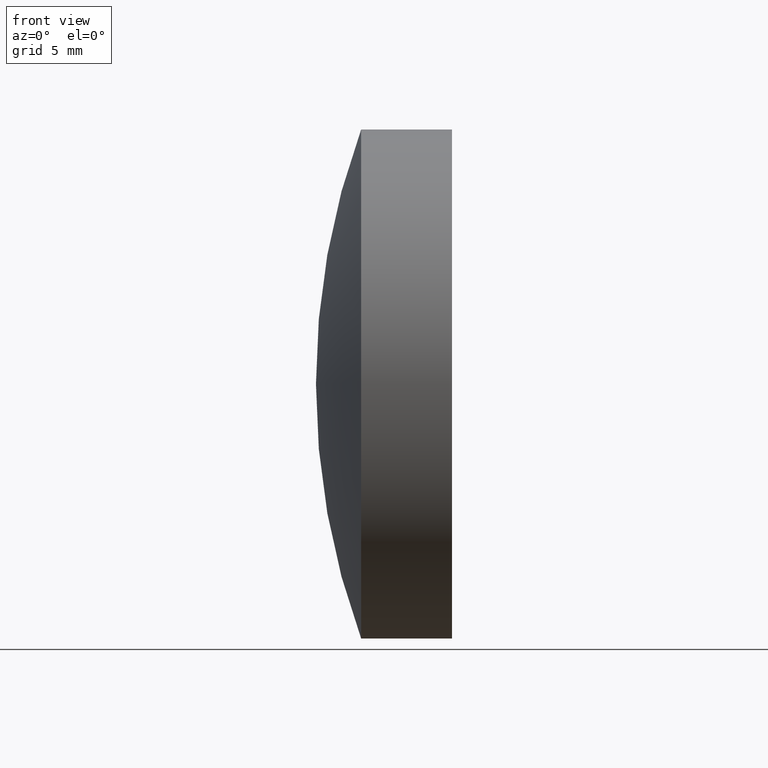
[diagram: clean part render]
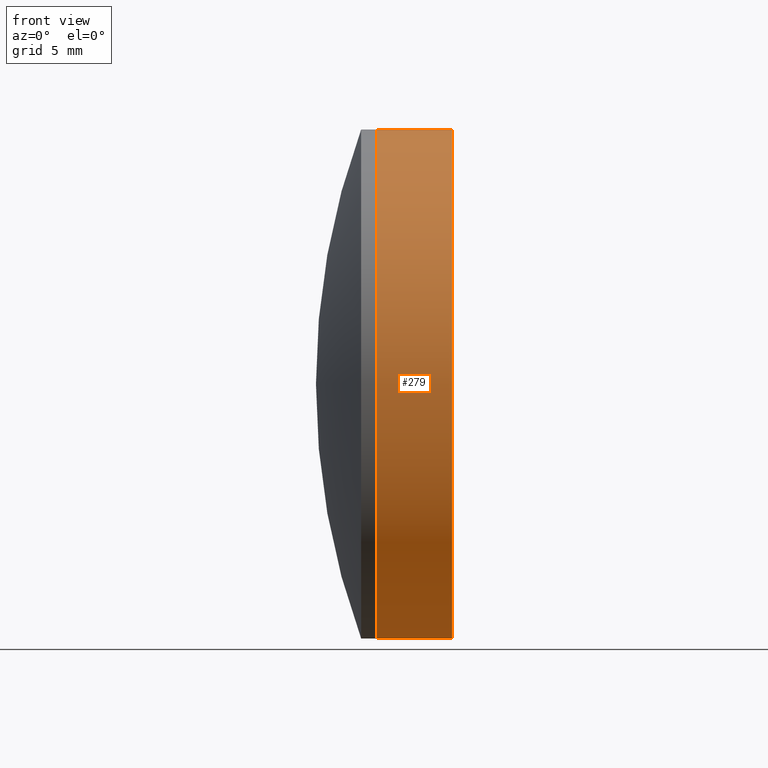
[diagram: same view with one face highlighted and labeled with its STEP entity id]
A machine part, front view. The second image highlights one B-rep face of the part: STEP entity #279.
In plain terms, the highlighted cylindrical surface (partial cylindrical patch) has radius 12.7 mm, axis along (-1, -0, -0).
Its self-contained STEP definition (entity closure, byte-faithful):
#1 = DIRECTION ( 'NONE',  ( -1.000000000000000000, -0.0000000000000000000, -0.0000000000000000000 ) ) ;
#14 = VECTOR ( 'NONE', #19, 1000.000000000000000 ) ;
#19 = DIRECTION ( 'NONE',  ( -1.000000000000000000, -0.0000000000000000000, -0.0000000000000000000 ) ) ;
#28 = CARTESIAN_POINT ( 'NONE',  ( 307.0473420726939900, 0.0000000000000000000, 12.69999999999999900 ) ) ;
#44 = CIRCLE ( 'NONE', #298, 12.70000000000001500 ) ;
#58 = FACE_OUTER_BOUND ( 'NONE', #306, .T. ) ;
#61 = AXIS2_PLACEMENT_3D ( 'NONE', #138, #133, #319 ) ;
#64 = CYLINDRICAL_SURFACE ( 'NONE', #61, 12.70000000000000600 ) ;
#65 = EDGE_CURVE ( 'NONE', #231, #297, #88, .T. ) ;
#71 = VERTEX_POINT ( 'NONE', #203 ) ;
#77 = ORIENTED_EDGE ( 'NONE', *, *, #303, .T. ) ;
#81 = VECTOR ( 'NONE', #230, 1000.000000000000000 ) ;
#82 = VERTEX_POINT ( 'NONE', #101 ) ;
#83 = CARTESIAN_POINT ( 'NONE',  ( 303.2964480163323600, 0.0000000000000000000, 0.0000000000000000000 ) ) ;
#84 = EDGE_CURVE ( 'NONE', #82, #71, #149, .T. ) ;
#88 = LINE ( 'NONE', #105, #14 ) ;
#101 = CARTESIAN_POINT ( 'NONE',  ( 307.0473420726939900, 1.555301434917138800E-015, -12.69999999999999900 ) ) ;
#104 = DIRECTION ( 'NONE',  ( 0.0000000000000000000, 0.0000000000000000000, 1.000000000000000000 ) ) ;
#105 = CARTESIAN_POINT ( 'NONE',  ( -0.5519199926577972300, 0.0000000000000000000, 12.70000000000000600 ) ) ;
#109 = CIRCLE ( 'NONE', #147, 12.69999999999999900 ) ;
#127 = CARTESIAN_POINT ( 'NONE',  ( -0.5519199926577972300, 1.555301434917139200E-015, -12.70000000000000600 ) ) ;
#128 = CARTESIAN_POINT ( 'NONE',  ( 307.0473420726939900, 0.0000000000000000000, 0.0000000000000000000 ) ) ;
#133 = DIRECTION ( 'NONE',  ( -1.000000000000000000, -0.0000000000000000000, -0.0000000000000000000 ) ) ;
#138 = CARTESIAN_POINT ( 'NONE',  ( -0.5519199926577972300, 0.0000000000000000000, 0.0000000000000000000 ) ) ;
#147 = AXIS2_PLACEMENT_3D ( 'NONE', #128, #285, #104 ) ;
#149 = LINE ( 'NONE', #127, #81 ) ;
#170 = ORIENTED_EDGE ( 'NONE', *, *, #65, .T. ) ;
#203 = CARTESIAN_POINT ( 'NONE',  ( 303.2964480163323600, 1.555301434917139600E-015, -12.70000000000000300 ) ) ;
#215 = DIRECTION ( 'NONE',  ( 0.0000000000000000000, 0.0000000000000000000, 1.000000000000000000 ) ) ;
#222 = EDGE_CURVE ( 'NONE', #71, #297, #44, .T. ) ;
#230 = DIRECTION ( 'NONE',  ( -1.000000000000000000, -0.0000000000000000000, -0.0000000000000000000 ) ) ;
#231 = VERTEX_POINT ( 'NONE', #28 ) ;
#242 = CARTESIAN_POINT ( 'NONE',  ( 303.2964480163323600, 0.0000000000000000000, 12.70000000000001000 ) ) ;
#272 = ORIENTED_EDGE ( 'NONE', *, *, #84, .F. ) ;
#279 = ADVANCED_FACE ( 'NONE', ( #58 ), #64, .T. ) ;
#285 = DIRECTION ( 'NONE',  ( -1.000000000000000000, -0.0000000000000000000, -0.0000000000000000000 ) ) ;
#297 = VERTEX_POINT ( 'NONE', #242 ) ;
#298 = AXIS2_PLACEMENT_3D ( 'NONE', #83, #1, #215 ) ;
#303 = EDGE_CURVE ( 'NONE', #82, #231, #109, .T. ) ;
#306 = EDGE_LOOP ( 'NONE', ( #272, #77, #170, #331 ) ) ;
#319 = DIRECTION ( 'NONE',  ( 0.0000000000000000000, 0.0000000000000000000, 1.000000000000000000 ) ) ;
#331 = ORIENTED_EDGE ( 'NONE', *, *, #222, .F. ) ;